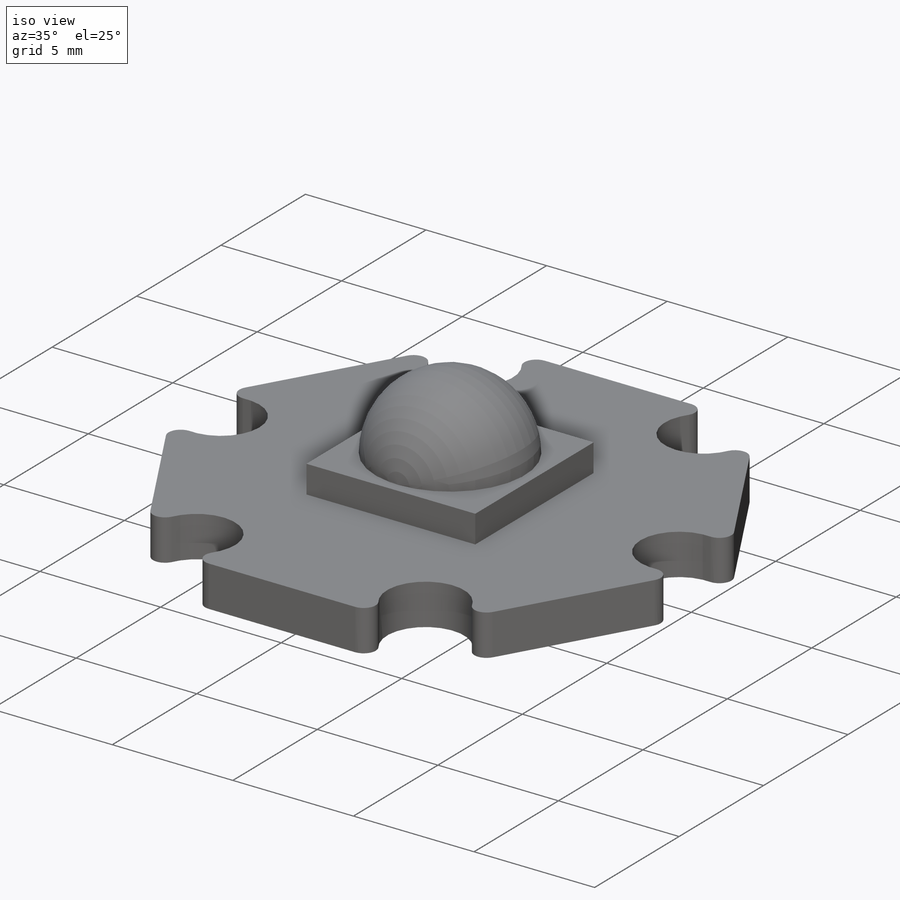
[diagram: iso view]
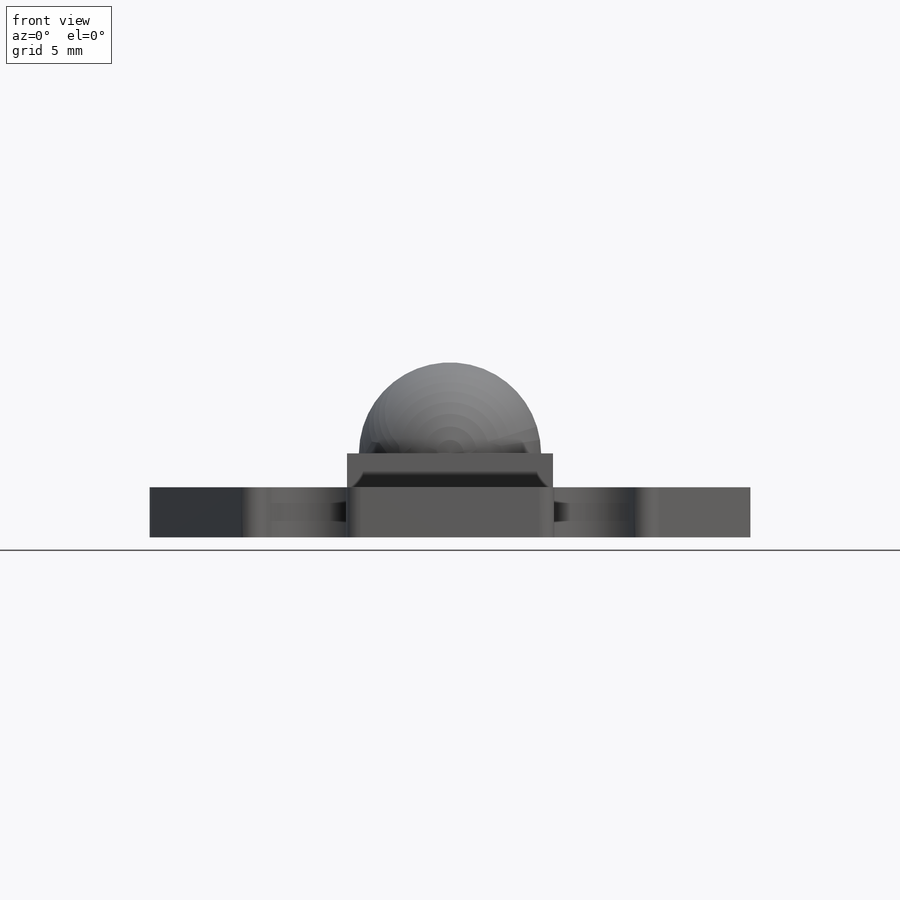
[diagram: front view]
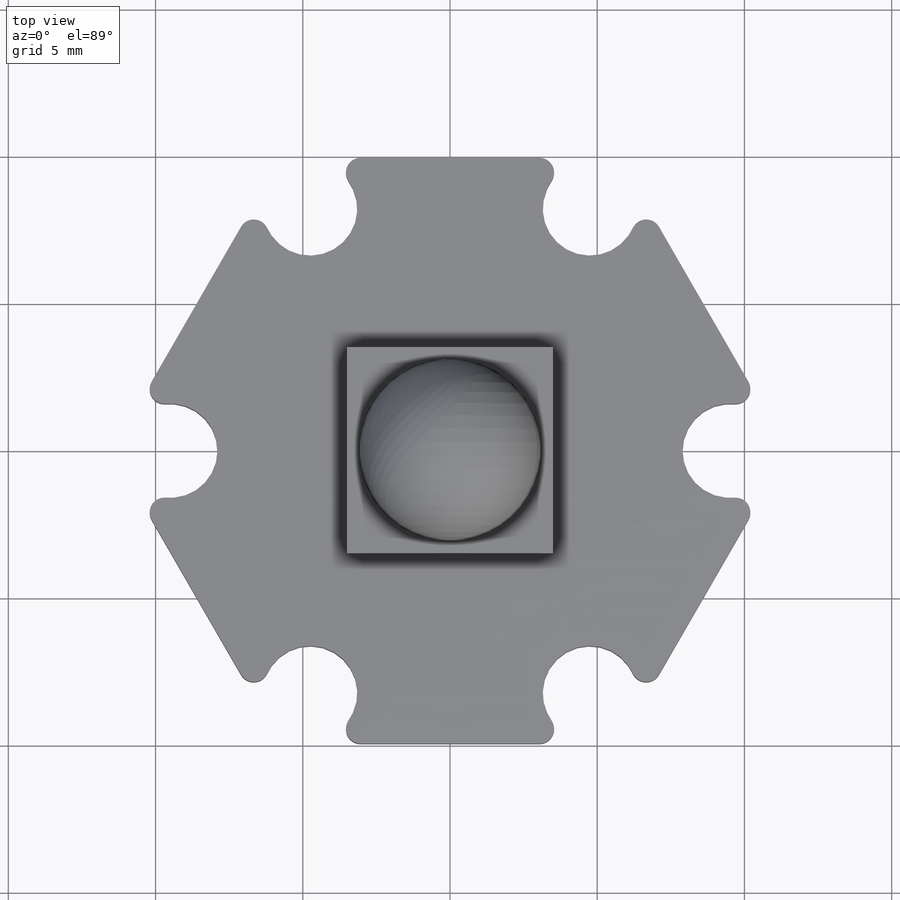
[diagram: top view]
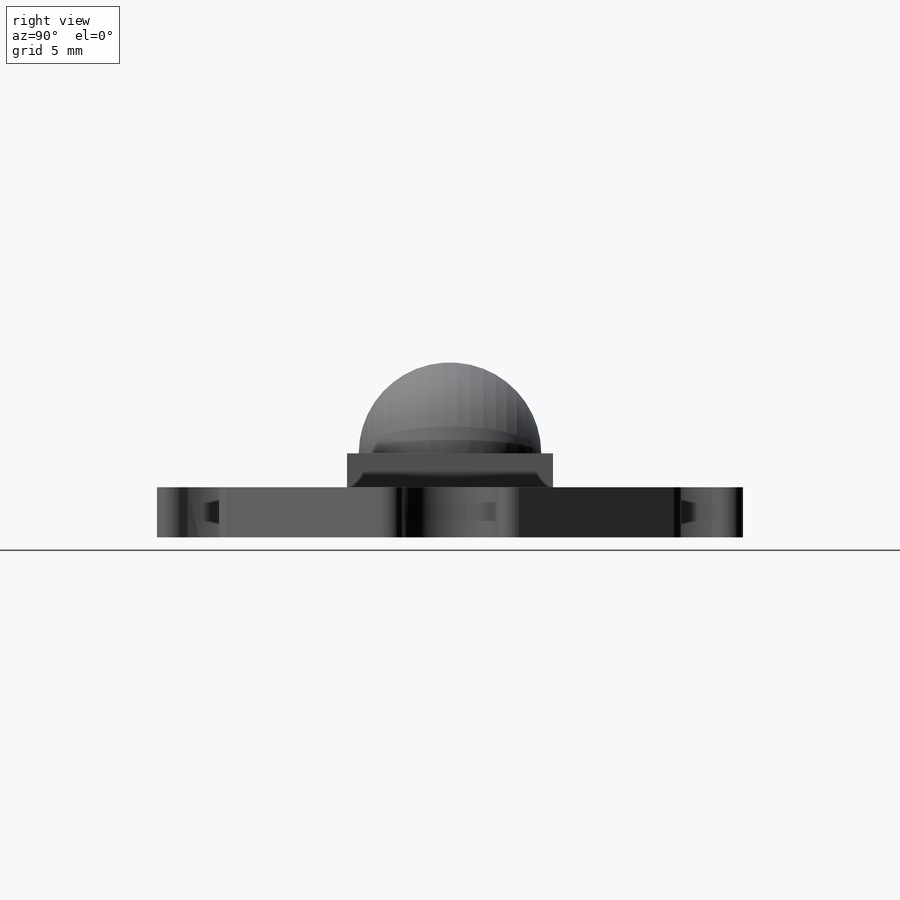
[diagram: right view]
SOLIDWORKS PART (.sldprt)
format: sldprt  version: not decoded by parser v0  size: 277,504 bytes
history: native  units: mm
features: sketch x4, extrude x2, material x1, fillet x1, revolve x1 (+11 scaffold rows collapsed)
feature tree (20):
  scaffold x11  (default folders/planes/origin — collapsed)
  material  "Material <not specified>"
  sketch  "Sketch1"  dims[D2=19.0mm D3=3.2mm D1=19.9mm D4=6.0]
  extrude  "Boss-Extrude1"  Depth=1.7mm
  fillet  "Fillet1"  Radius=0.5mm
  sketch  "Sketch4"  dims[D1=7.0mm D2=7.0mm D3=6.45mm]
  extrude  "Boss-Extrude2"  Depth=1.15mm
  sketch  "Sketch5"  dims[D1=6.2mm]
  revolve  "Revolve4"  Angle=180deg
  sketch  "Sketch6"
decode coverage: 7 of 8 modeling features carry decoded parameters
note: suppression state not decoded; provenance and decode notes live in map.json
